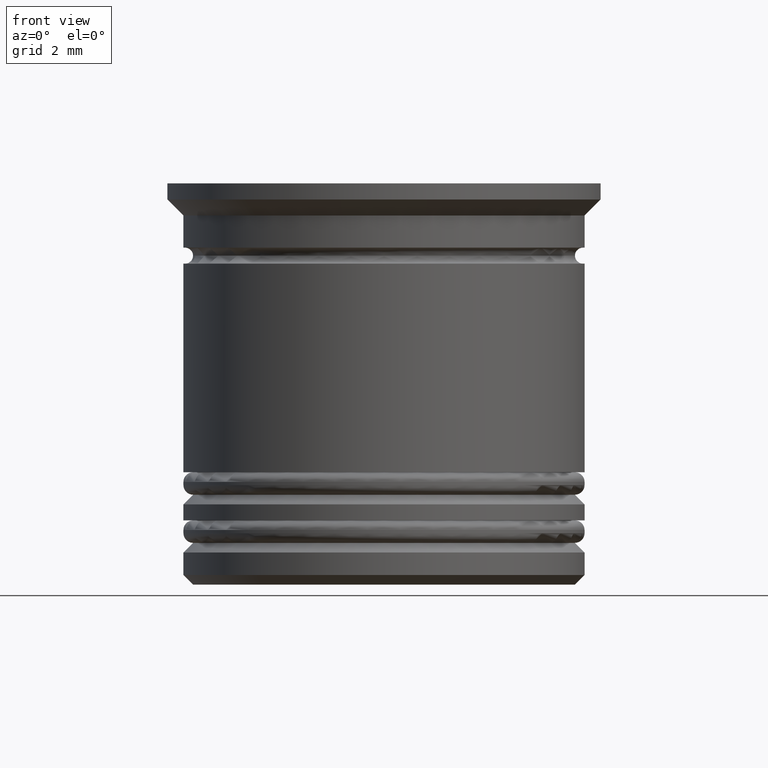
[diagram: clean part render]
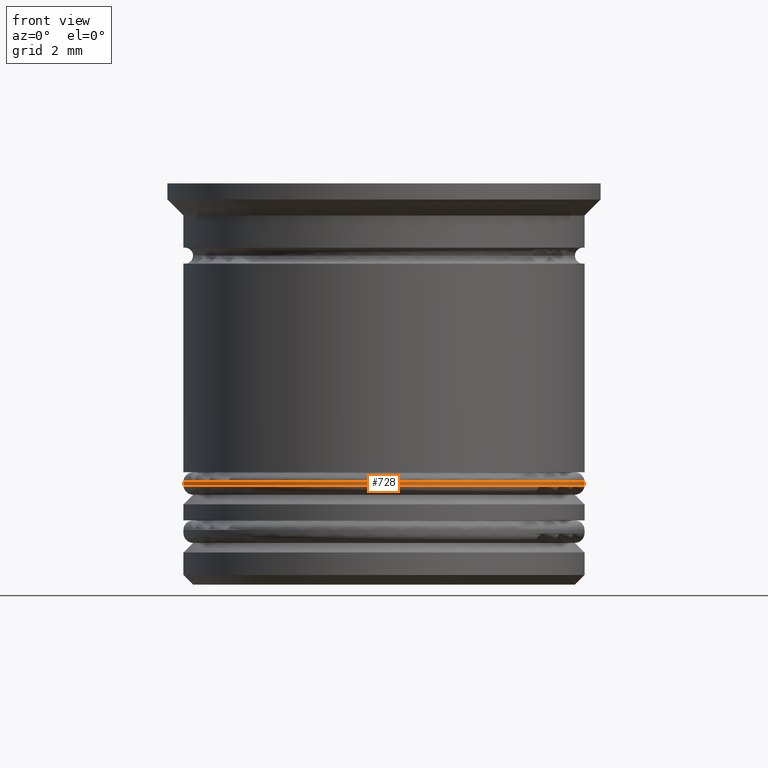
[diagram: same view with one face highlighted and labeled with its STEP entity id]
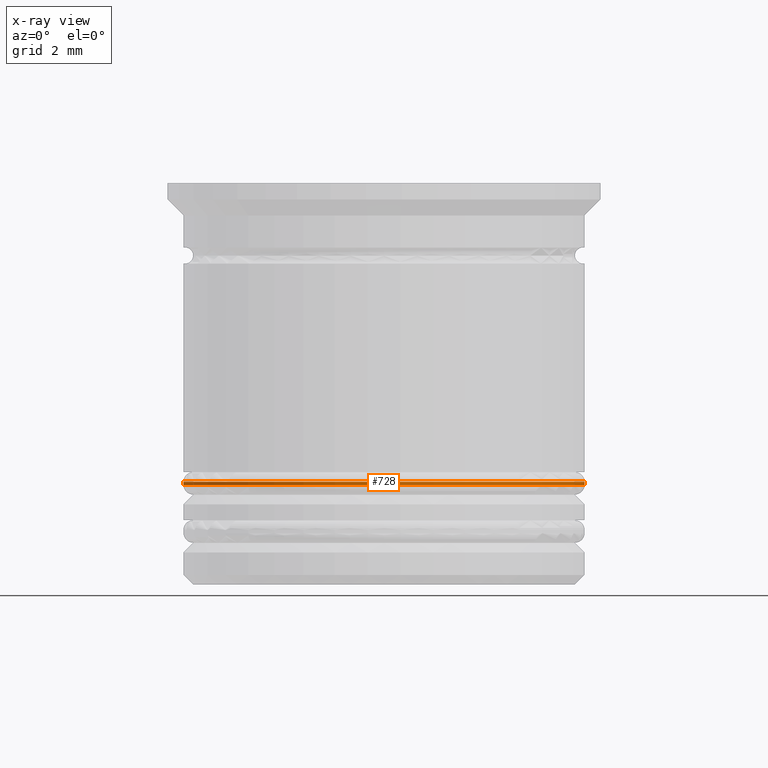
[diagram: x-ray of the same camera — body ghosted, the highlighted face saturated]
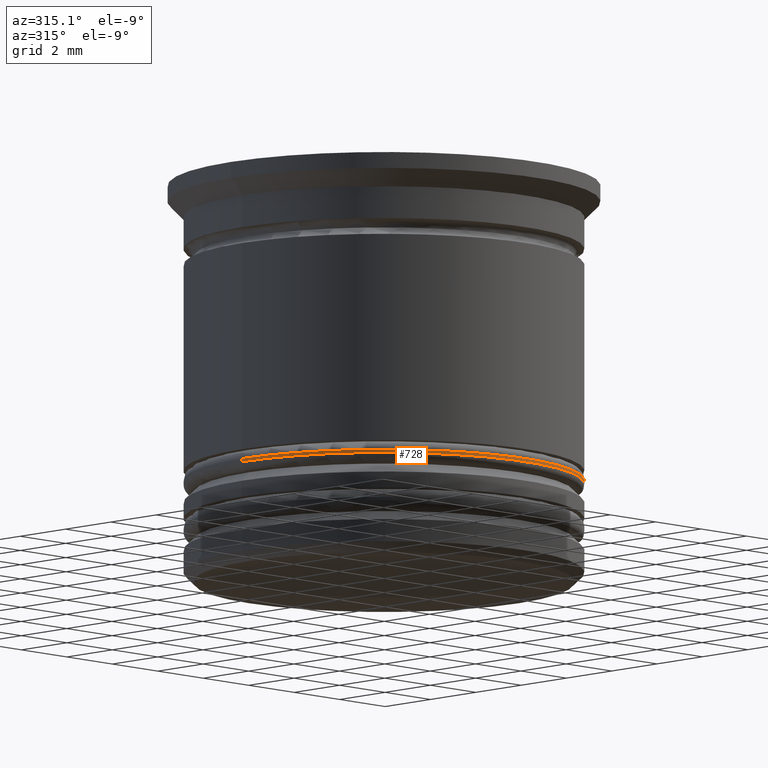
[diagram: same view with one face highlighted and labeled with its STEP entity id]
A machine part, front view. The second image highlights one B-rep face of the part: STEP entity #728.
The next image is the same camera in x-ray: the body ghosted, the highlighted face saturated — about 0% of this face is hidden behind the body in this view.
A second angle (auxiliary view) of the same face is appended — the face is thin or edge-on in the first view.
In plain terms, the highlighted cylindrical surface (partial cylindrical patch) has radius 6.25 mm, axis along (-0, -0, 1).
Its self-contained STEP definition (entity closure, byte-faithful):
#75 = ORIENTED_EDGE ( 'NONE', *, *, #683, .T. ) ;
#153 = ORIENTED_EDGE ( 'NONE', *, *, #269, .T. ) ;
#198 = CARTESIAN_POINT ( 'NONE',  ( 6.250000000000000000, 0.000000000000000000, -9.400000000000009237 ) ) ;
#226 = CARTESIAN_POINT ( 'NONE',  ( -6.250000000000000000, 7.654042494670957606E-16, -9.400000000000009237 ) ) ;
#252 = ORIENTED_EDGE ( 'NONE', *, *, #1633, .F. ) ;
#269 = EDGE_CURVE ( 'NONE', #1591, #1124, #809, .T. ) ;
#372 = CIRCLE ( 'NONE', #1293, 6.250000000000000000 ) ;
#389 = DIRECTION ( 'NONE',  ( -0.000000000000000000, -0.000000000000000000, 1.000000000000000000 ) ) ;
#620 = DIRECTION ( 'NONE',  ( -0.000000000000000000, -0.000000000000000000, 1.000000000000000000 ) ) ;
#669 = DIRECTION ( 'NONE',  ( 1.000000000000000000, 0.000000000000000000, 0.000000000000000000 ) ) ;
#683 = EDGE_CURVE ( 'NONE', #1124, #1142, #1794, .T. ) ;
#728 = ADVANCED_FACE ( 'NONE', ( #886 ), #1990, .T. ) ;
#784 = CARTESIAN_POINT ( 'NONE',  ( 0.000000000000000000, 0.000000000000000000, -9.299999999999998934 ) ) ;
#798 = DIRECTION ( 'NONE',  ( 0.000000000000000000, 0.000000000000000000, 1.000000000000000000 ) ) ;
#809 = LINE ( 'NONE', #1579, #1730 ) ;
#886 = FACE_OUTER_BOUND ( 'NONE', #1623, .T. ) ;
#933 = AXIS2_PLACEMENT_3D ( 'NONE', #784, #1392, #1401 ) ;
#936 = CARTESIAN_POINT ( 'NONE',  ( 6.250000000000000000, 0.000000000000000000, -9.299999999999998934 ) ) ;
#978 = CARTESIAN_POINT ( 'NONE',  ( -6.250000000000000000, 7.654042494670957606E-16, -27.37766952966369871 ) ) ;
#1119 = CARTESIAN_POINT ( 'NONE',  ( 0.000000000000000000, 0.000000000000000000, -9.400000000000009237 ) ) ;
#1124 = VERTEX_POINT ( 'NONE', #936 ) ;
#1142 = VERTEX_POINT ( 'NONE', #1662 ) ;
#1272 = DIRECTION ( 'NONE',  ( -0.000000000000000000, -0.000000000000000000, 1.000000000000000000 ) ) ;
#1293 = AXIS2_PLACEMENT_3D ( 'NONE', #1119, #798, #669 ) ;
#1335 = DIRECTION ( 'NONE',  ( 1.000000000000000000, 0.000000000000000000, 0.000000000000000000 ) ) ;
#1392 = DIRECTION ( 'NONE',  ( 0.000000000000000000, 0.000000000000000000, -1.000000000000000000 ) ) ;
#1401 = DIRECTION ( 'NONE',  ( -1.000000000000000000, 0.000000000000000000, 0.000000000000000000 ) ) ;
#1507 = VECTOR ( 'NONE', #1272, 1000.000000000000000 ) ;
#1557 = LINE ( 'NONE', #978, #1507 ) ;
#1579 = CARTESIAN_POINT ( 'NONE',  ( 6.250000000000000000, 0.000000000000000000, -27.37766952966369871 ) ) ;
#1591 = VERTEX_POINT ( 'NONE', #198 ) ;
#1602 = EDGE_CURVE ( 'NONE', #1954, #1591, #372, .T. ) ;
#1623 = EDGE_LOOP ( 'NONE', ( #252, #1752, #153, #75 ) ) ;
#1633 = EDGE_CURVE ( 'NONE', #1954, #1142, #1557, .T. ) ;
#1662 = CARTESIAN_POINT ( 'NONE',  ( -6.250000000000000000, 7.654042494670957606E-16, -9.299999999999998934 ) ) ;
#1730 = VECTOR ( 'NONE', #389, 1000.000000000000000 ) ;
#1752 = ORIENTED_EDGE ( 'NONE', *, *, #1602, .T. ) ;
#1794 = CIRCLE ( 'NONE', #933, 6.250000000000000000 ) ;
#1815 = CARTESIAN_POINT ( 'NONE',  ( 0.000000000000000000, 0.000000000000000000, -27.37766952966369871 ) ) ;
#1874 = AXIS2_PLACEMENT_3D ( 'NONE', #1815, #620, #1335 ) ;
#1954 = VERTEX_POINT ( 'NONE', #226 ) ;
#1990 = CYLINDRICAL_SURFACE ( 'NONE', #1874, 6.250000000000000000 ) ;